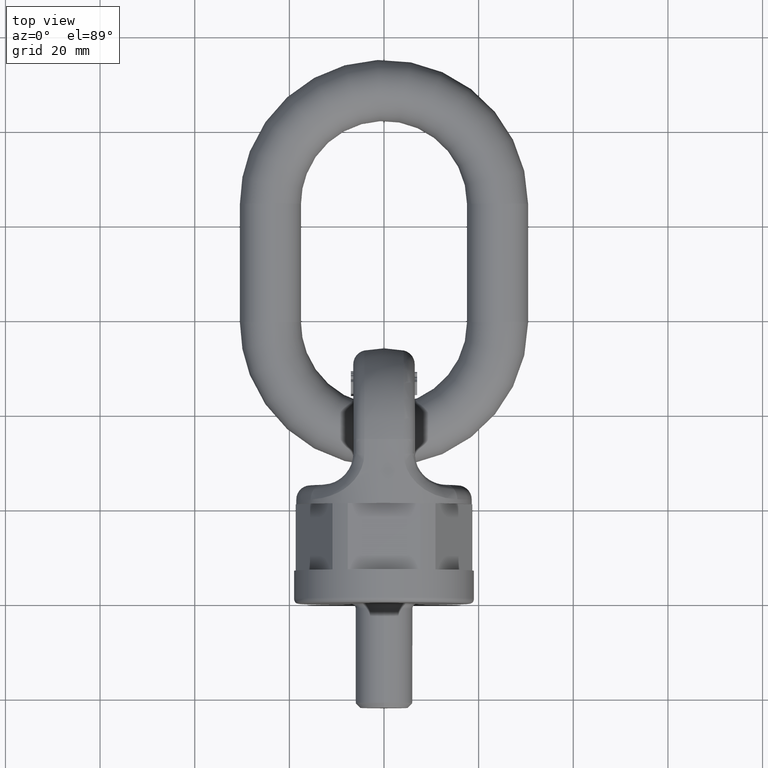
[diagram: clean part render]
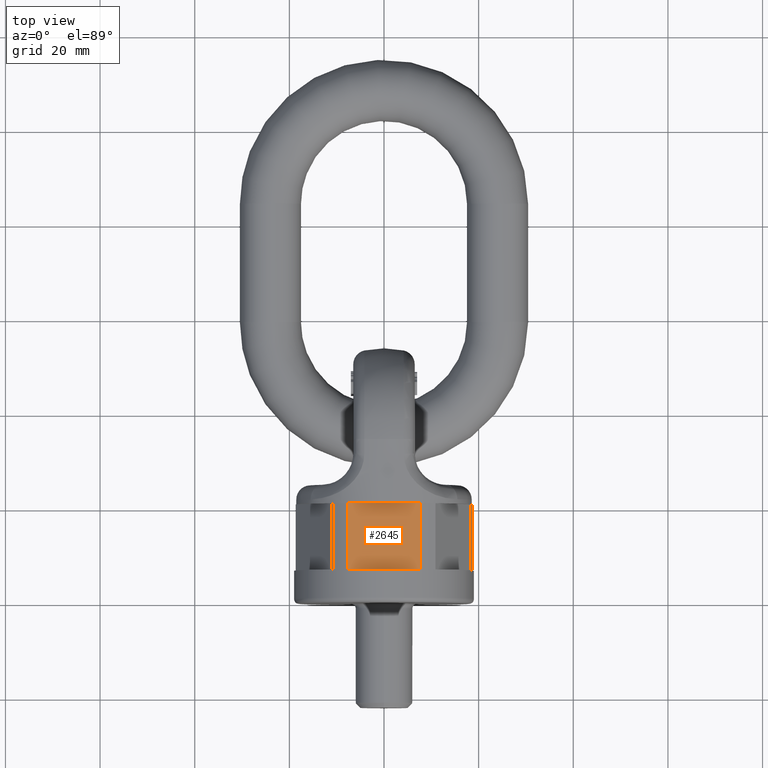
[diagram: same view with one face highlighted and labeled with its STEP entity id]
A machine part, top view. The second image highlights one B-rep face of the part: STEP entity #2645.
In plain terms, the highlighted planar face has unit normal (0, 0, 1).
Its self-contained STEP definition (entity closure, byte-faithful):
#1803=FACE_OUTER_BOUND('',#3068,.T.);
#2034=LINE('',#6574,#2290);
#2054=LINE('',#6627,#2310);
#2055=LINE('',#6629,#2311);
#2056=LINE('',#6631,#2312);
#2290=VECTOR('',#5814,1.);
#2310=VECTOR('',#5860,1.);
#2311=VECTOR('',#5861,1.);
#2312=VECTOR('',#5862,1.);
#2645=ADVANCED_FACE('',(#1803),#2887,.T.);
#2887=PLANE('',#5614);
#3068=EDGE_LOOP('',(#3380,#3381,#3382,#3383));
#3380=ORIENTED_EDGE('',*,*,#4964,.F.);
#3381=ORIENTED_EDGE('',*,*,#4938,.T.);
#3382=ORIENTED_EDGE('',*,*,#4965,.F.);
#3383=ORIENTED_EDGE('',*,*,#4966,.T.);
#4540=VERTEX_POINT('',#6573);
#4541=VERTEX_POINT('',#6575);
#4561=VERTEX_POINT('',#6628);
#4562=VERTEX_POINT('',#6630);
#4938=EDGE_CURVE('',#4541,#4540,#2034,.T.);
#4964=EDGE_CURVE('',#4541,#4561,#2054,.T.);
#4965=EDGE_CURVE('',#4562,#4540,#2055,.T.);
#4966=EDGE_CURVE('',#4562,#4561,#2056,.T.);
#5614=AXIS2_PLACEMENT_3D('',#6632,#5863,#5864);
#5814=DIRECTION('',(1.,3.82702124733548E-17,0.));
#5860=DIRECTION('',(-2.4492935982947E-17,1.,0.));
#5861=DIRECTION('',(2.4492935982947E-17,-1.,0.));
#5862=DIRECTION('',(-1.,0.,0.));
#5863=DIRECTION('',(0.,0.,1.));
#5864=DIRECTION('',(1.,0.,0.));
#6573=CARTESIAN_POINT('',(7.66572457979367,7.,17.));
#6574=CARTESIAN_POINT('',(19.,7.,17.));
#6575=CARTESIAN_POINT('',(-7.66572457979367,7.,17.));
#6627=CARTESIAN_POINT('',(-7.66572457979367,-1.8775610139579E-16,17.));
#6628=CARTESIAN_POINT('',(-7.66572457979366,21.,17.));
#6629=CARTESIAN_POINT('',(7.66572457979367,1.8775610139579E-16,17.));
#6630=CARTESIAN_POINT('',(7.66572457979366,21.,17.));
#6631=CARTESIAN_POINT('',(9.81495457622363,21.,17.));
#6632=CARTESIAN_POINT('',(9.81495457622363,21.,17.));